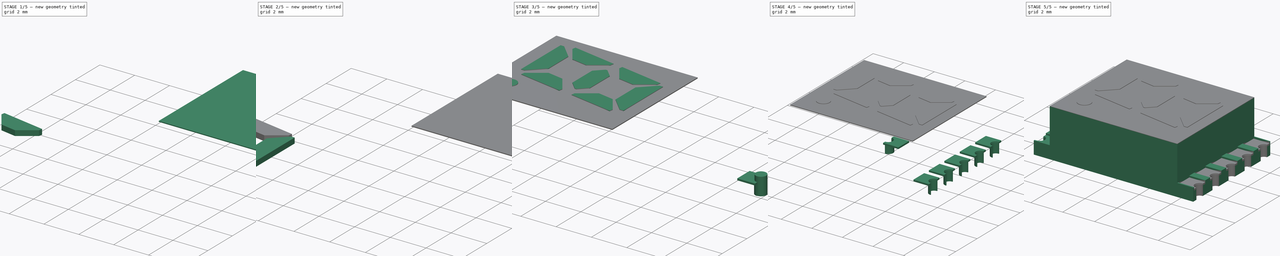
[diagram: build sequence overview — one tinted view per stage of 5, left to right]
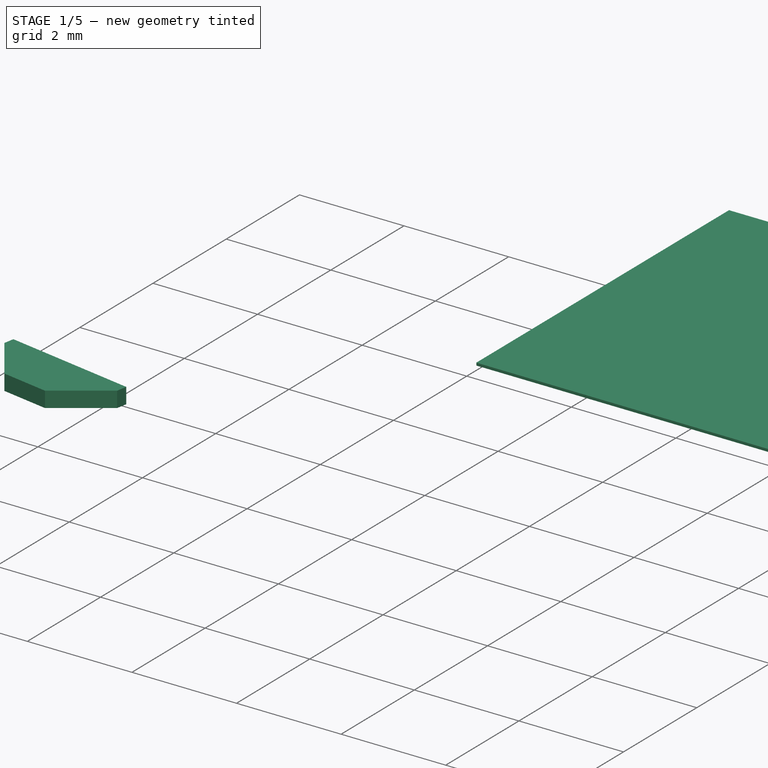
[diagram: stage 1 of 5 — iso view after this stage's code; geometry added in this stage tinted green]
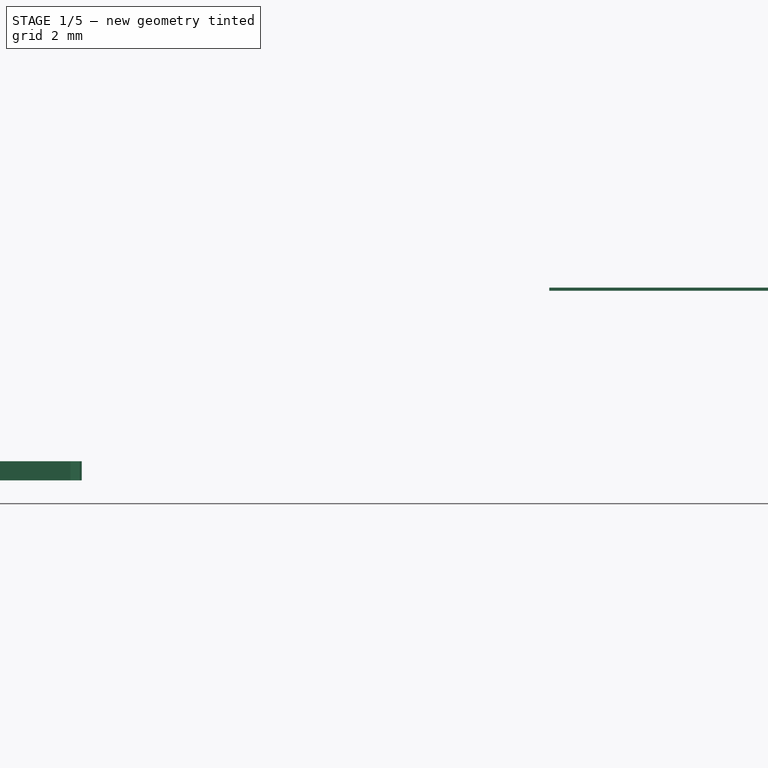
[diagram: stage 1 of 5 — front view after this stage's code; geometry added in this stage tinted green]
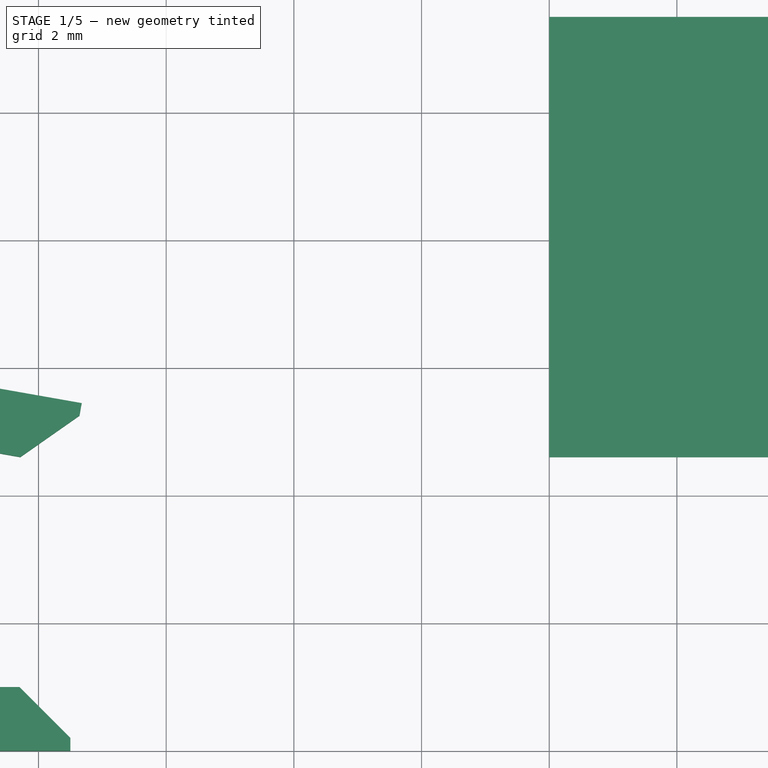
[diagram: stage 1 of 5 — top view after this stage's code; geometry added in this stage tinted green]
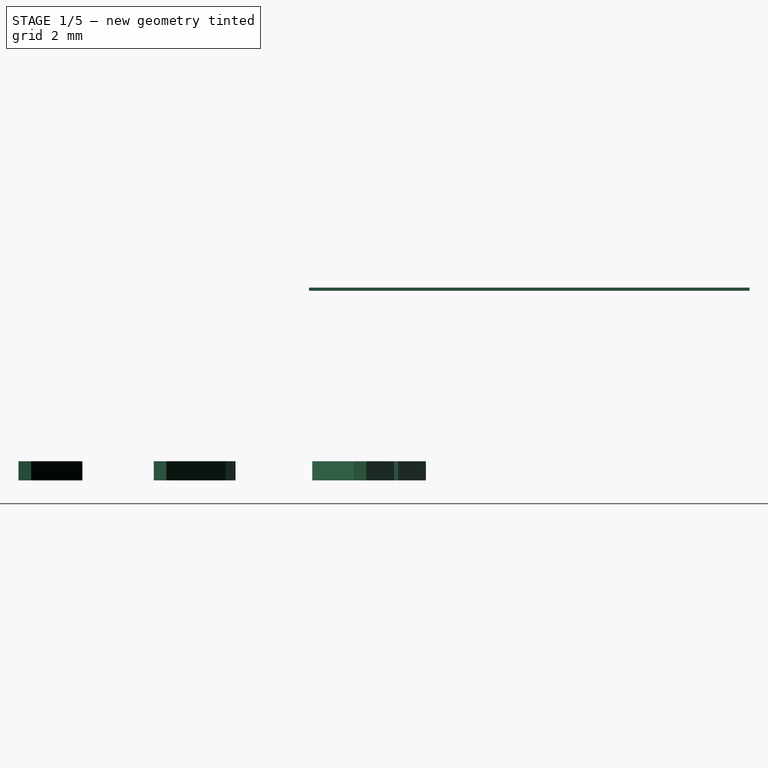
[diagram: stage 1 of 5 — right view after this stage's code; geometry added in this stage tinted green]
FCSTD DOCUMENT  (FreeCAD 0.17R11223 (Git))
Label: KCSAX02-XXX_4
License: All rights reserved
LicenseURL: http://en.wikipedia.org/wiki/All_rights_reserved
objects: Part::Box×19, Part::Cut×14, Part::Chamfer×12, Part::Cylinder×8, Part::FeaturePython×4, Part::MultiFuse×3, Sketcher::SketchObject×1, PartDesign::Pad×1, PartDesign::Body×1
note: 64 computed .brp shape members not serialized (recipe doc carries the construction recipe); baked Part::Feature solids carry a one-line shape summary decoded from their .brp

FEATURE [Part::Box] Box023  label="Kub023"
  AttacherType = Attacher::AttachEngine3D
  Height = 0.3
  Length = 2.5
  Placement = pos=(-14,-8,0) rot=(0,0,1;0rad)
  Width = 1
FEATURE [Part::Chamfer] Chamfer004
  Base = -> Box023
  Edges = 1 edges r=0.8: [Edge7]
FEATURE [Part::Box] Box024  label="Kub024"
  AttacherType = Attacher::AttachEngine3D
  Height = 0.3
  Length = 2.5
  Placement = pos=(-14,-8,0) rot=(0,0,1;0rad)
  Width = 1
FEATURE [Part::Chamfer] Chamfer006
  Base = -> Box024
  Edges = 1 edges r=0.8: [Edge7]
FEATURE [Part::Chamfer] Chamfer007
  Base = -> Chamfer006
  Edges = 1 edges r=0.8: [Edge15]
  Placement = pos=(-29.5,-7.5,0) rot=(0,0,1;2.96706rad)
FEATURE [Part::Box] Box025  label="Kub025"
  AttacherType = Attacher::AttachEngine3D
  Height = 0.3
  Length = 2.5
  Placement = pos=(-14,-8,0) rot=(0,0,1;0rad)
  Width = 1
FEATURE [Part::Chamfer] Chamfer008
  Base = -> Box025
  Edges = 1 edges r=0.8: [Edge7]
FEATURE [Part::Chamfer] Chamfer009
  Base = -> Chamfer008
  Edges = 1 edges r=0.8: [Edge15]
  Placement = pos=(-2,0,0) rot=(0,0,-1;0.174533rad)
FEATURE [Part::Box] Box026  label="Kub026"
  AttacherType = Attacher::AttachEngine3D
  Height = 0.3
  Length = 2.5
  Placement = pos=(-14,-8,0) rot=(0,0,1;0rad)
  Width = 1
FEATURE [Part::Chamfer] Chamfer010
  Base = -> Box026
  Edges = 1 edges r=0.8: [Edge7]
FEATURE [Part::Chamfer] Chamfer011
  Base = -> Chamfer010
  Edges = 1 edges r=0.8: [Edge15]
  Placement = pos=(-26.5,-8,0) rot=(0,0,1;2.96706rad)
FEATURE [Part::Box] Box027  label="Topside"
  AttacherType = Attacher::AttachEngine3D
  Height = 0.05
  Length = 8
  Placement = pos=(-4,-3.45,2.97) rot=(0,0,1;0rad)
  Width = 6.9
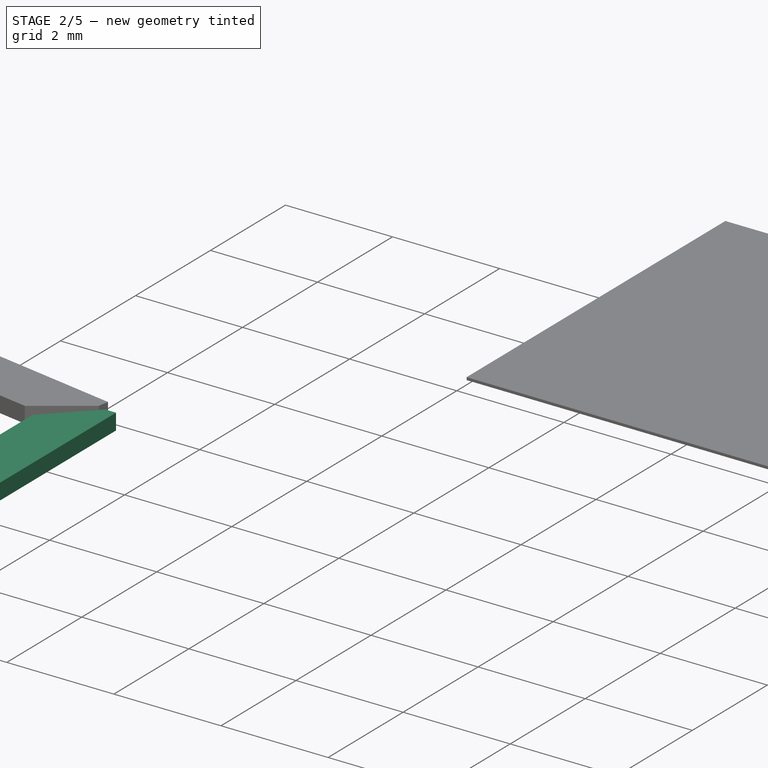
[diagram: stage 2 of 5 — iso view after this stage's code; geometry added in this stage tinted green]
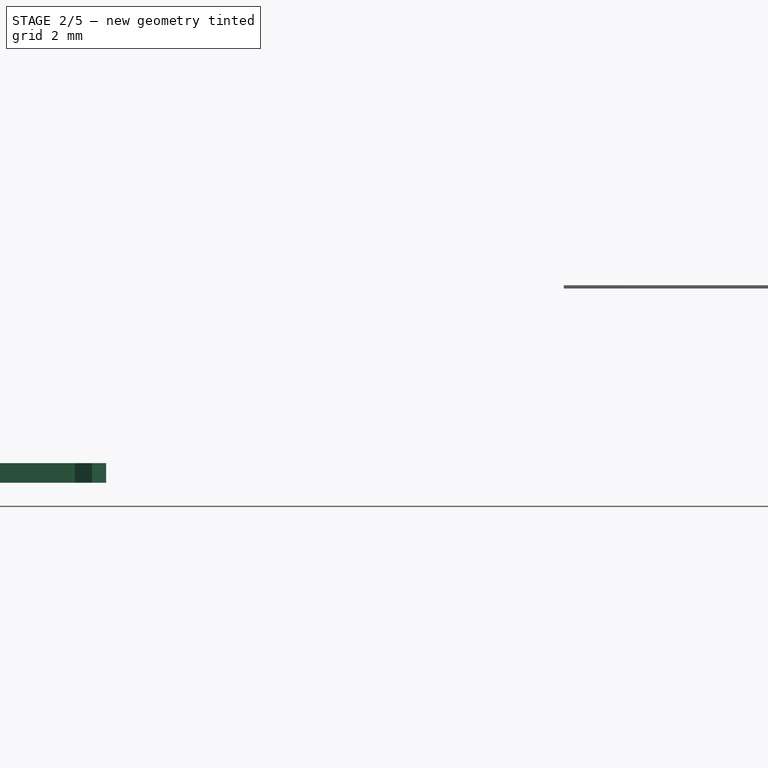
[diagram: stage 2 of 5 — front view after this stage's code; geometry added in this stage tinted green]
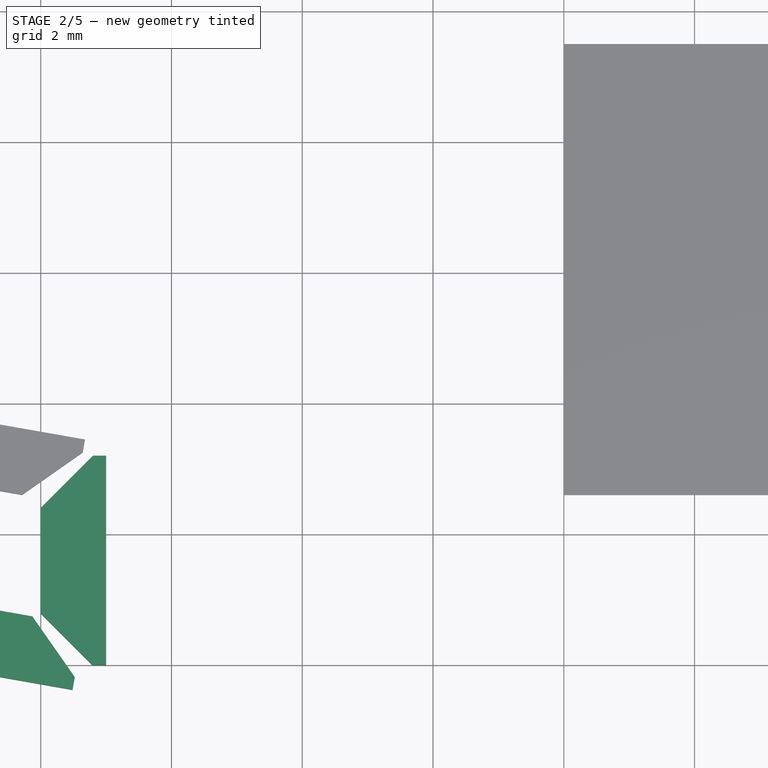
[diagram: stage 2 of 5 — top view after this stage's code; geometry added in this stage tinted green]
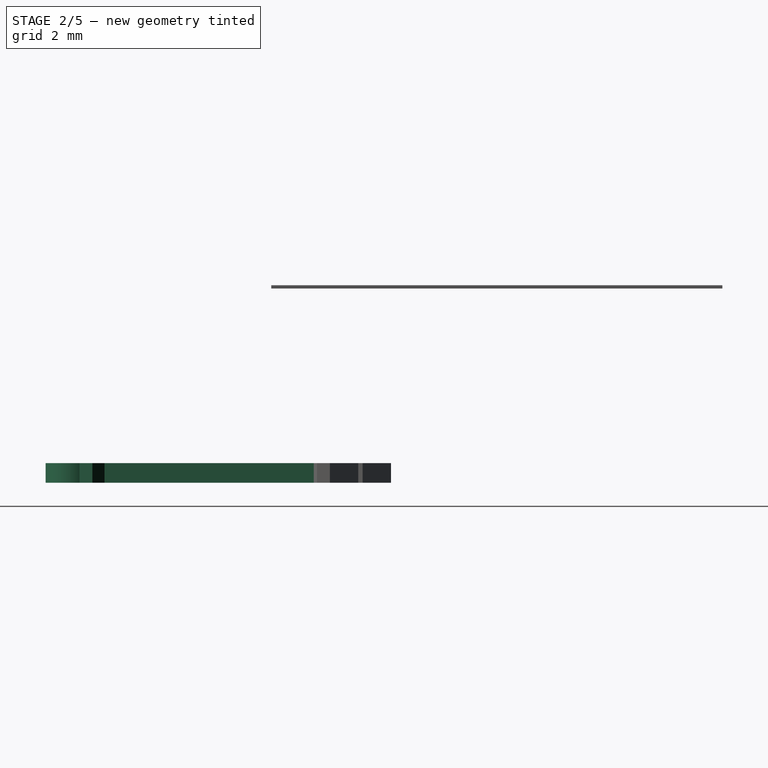
[diagram: stage 2 of 5 — right view after this stage's code; geometry added in this stage tinted green]
FEATURE [Part::Box] Box007  label="Kub007"
  AttacherType = Attacher::AttachEngine3D
  Height = 0.3
  Length = 1
  Placement = pos=(-11,-5,0) rot=(0,0,1;0rad)
  Width = 3.2
FEATURE [Part::Box] Box009  label="Kub009"
  AttacherType = Attacher::AttachEngine3D
  Height = 0.3
  Length = 3
  Placement = pos=(-10.8,-6.415,0) rot=(0,0,1;0.785398rad)
  Width = 1
FEATURE [Part::Box] Box010  label="Kub010"
  AttacherType = Attacher::AttachEngine3D
  Height = 0.3
  Length = 4
  Placement = pos=(-11.8,-0.8,0) rot=(0,0,-1;0.785398rad)
  Width = 1
FEATURE [Part::Box] Box011  label="Kub011"
  AttacherType = Attacher::AttachEngine3D
  Height = 0.3
  Length = 1
  Placement = pos=(-20,-5,0) rot=(0,0,1;0rad)
  Width = 3.2
FEATURE [Part::Box] Box012  label="Kub012"
  AttacherType = Attacher::AttachEngine3D
  Height = 0.3
  Length = 3
  Placement = pos=(-20.2,-2.8,0) rot=(0,0,1;0.785398rad)
  Width = 1
FEATURE [Part::Box] Box013  label="Kub013"
  AttacherType = Attacher::AttachEngine3D
  Height = 0.3
  Length = 4
  Placement = pos=(-22.2,-3.43,0) rot=(0,0,-1;0.785398rad)
  Width = 1
FEATURE [Part::Cut] Cut011
  Base = -> Box007
  Tool = -> Box010
FEATURE [Part::Cut] Cut012
  Base = -> Cut011
  Placement = pos=(-6.5,0,0) rot=(0,0,1;0rad)
  Tool = -> Box009
FEATURE [Part::Cut] Cut013
  Base = -> Box011
  Tool = -> Box013
FEATURE [Part::Cut] Cut014
  Base = -> Cut013
  Placement = pos=(8,-1,0) rot=(0,0,1;0rad)
  Tool = -> Box012
FEATURE [Part::Cylinder] Cylinder007
  Angle = 360
  AttacherType = Attacher::AttachEngine3D
  Height = 0.3
  Placement = pos=(-17.1,-6.5,0) rot=(0,0,1;0rad)
  Radius = 0.4
FEATURE [Part::Chamfer] Chamfer005
  Base = -> Chamfer004
  Edges = 1 edges r=0.8: [Edge15]
  Placement = pos=(1.2,-0.5,0) rot=(0,0,-1;0.174533rad)
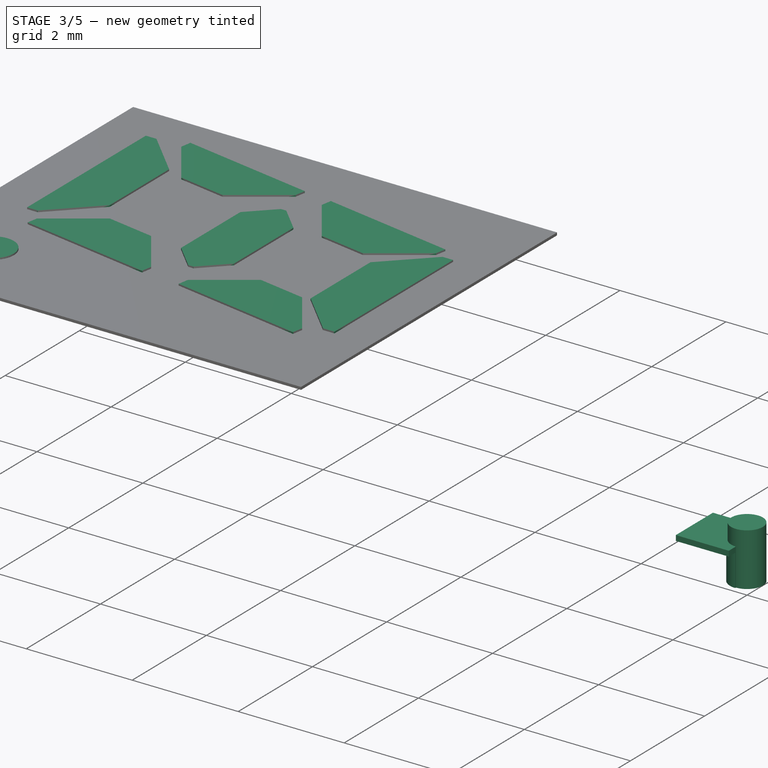
[diagram: stage 3 of 5 — iso view after this stage's code; geometry added in this stage tinted green]
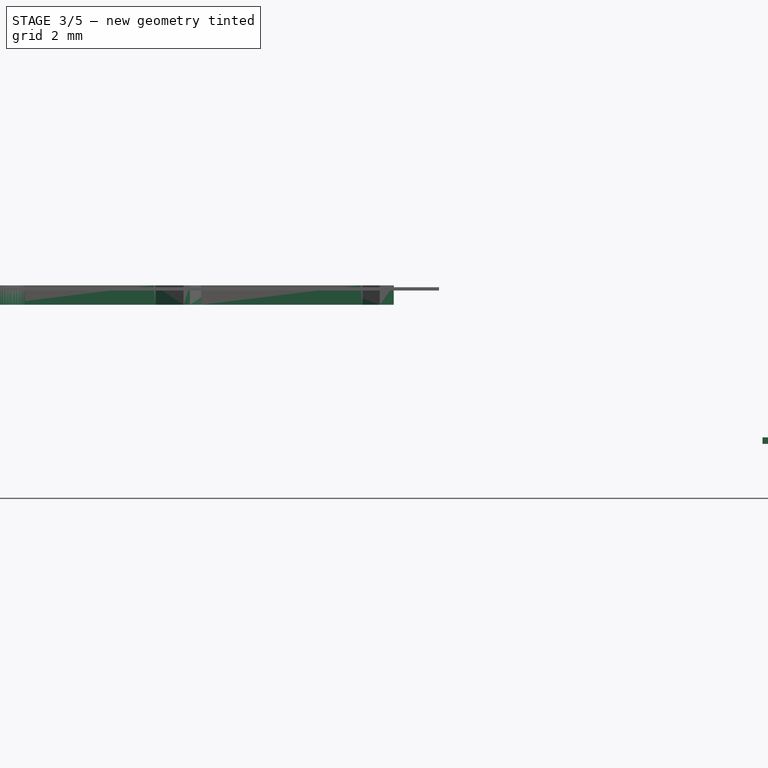
[diagram: stage 3 of 5 — front view after this stage's code; geometry added in this stage tinted green]
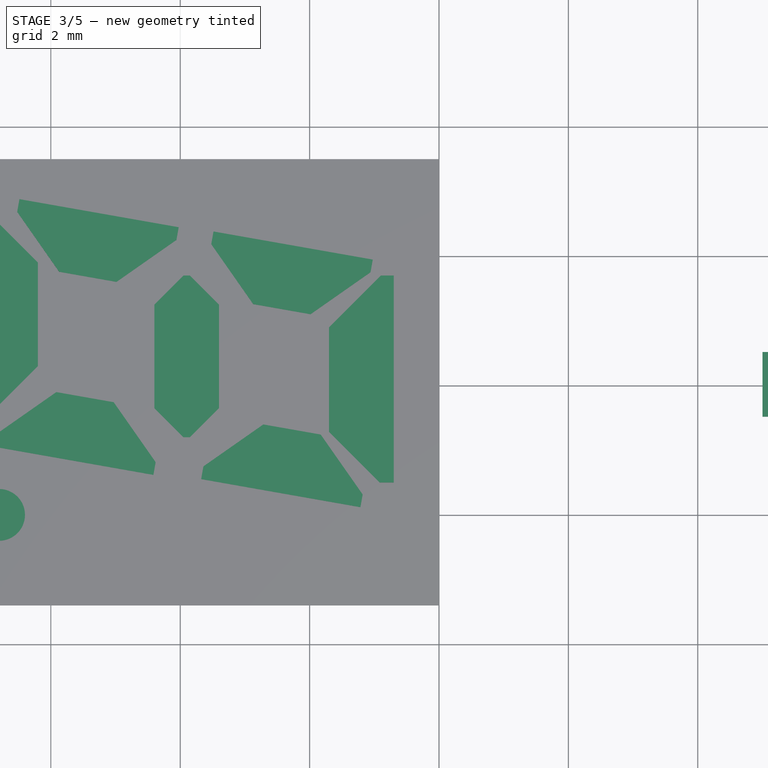
[diagram: stage 3 of 5 — top view after this stage's code; geometry added in this stage tinted green]
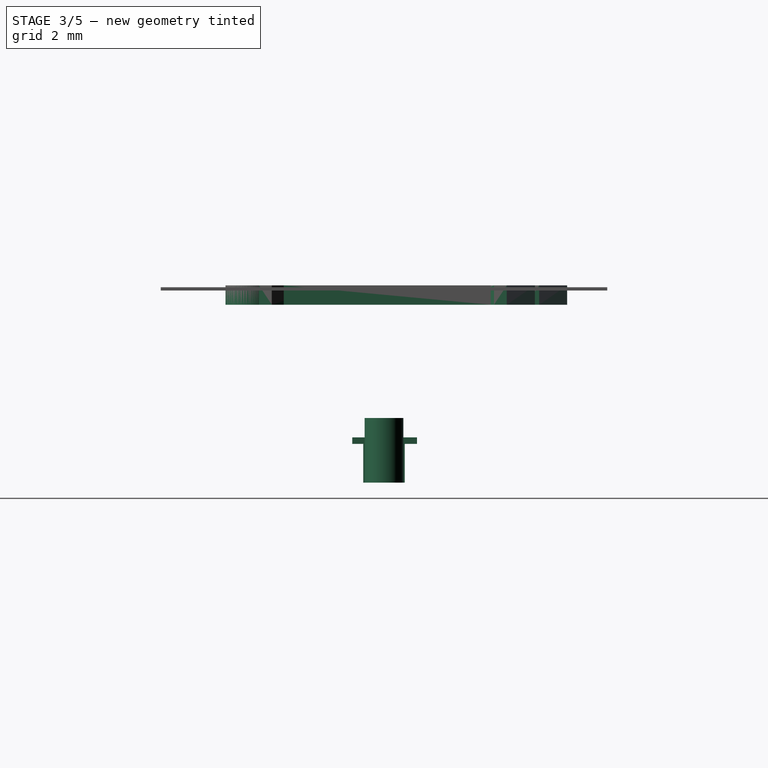
[diagram: stage 3 of 5 — right view after this stage's code; geometry added in this stage tinted green]
FEATURE [Part::Box] Box004  label="Kub004"
  AttacherType = Attacher::AttachEngine3D
  Height = 0.1
  Length = 1
  Placement = pos=(9,-0.49,0.6) rot=(0,0,1;0rad)
  Width = 1
FEATURE [Part::Cylinder] Cylinder002
  Angle = 360
  AttacherType = Attacher::AttachEngine3D
  Height = 1
  Placement = pos=(10,0,0) rot=(0,0,1;3.14159rad)
  Radius = 0.3
FEATURE [Part::Cylinder] Cylinder005
  Angle = 360
  AttacherType = Attacher::AttachEngine3D
  Height = 3
  Placement = pos=(0,0,-1) rot=(0,0,1;0rad)
  Radius = 0.28
FEATURE [Part::Cylinder] Cylinder006
  Angle = 360
  AttacherType = Attacher::AttachEngine3D
  Height = 0.65
  Radius = 0.32
FEATURE [Part::Cut] Cut008
  Base = -> Cylinder006
  Tool = -> Cylinder005
FEATURE [Part::Box] Box006  label="Kub006"
  AttacherType = Attacher::AttachEngine3D
  Height = 1
  Length = 1
  Placement = pos=(-1,-0.5,0) rot=(0,0,1;0rad)
  Width = 1
FEATURE [Part::Cut] Cut009
  Base = -> Cut008
  Placement = pos=(10,0,0) rot=(0,0,1;3.14159rad)
  Tool = -> Box006
FEATURE [Part::Box] Box008  label="Kub008"
  AttacherType = Attacher::AttachEngine3D
  Height = 0.3
  Length = 1
  Placement = pos=(-15,-5,0) rot=(0,0,1;0rad)
  Width = 2.5
FEATURE [Part::Chamfer] Chamfer
  Base = -> Box008
  Edges = 1 edges r=0.45: [Edge1]
FEATURE [Part::Chamfer] Chamfer001
  Base = -> Chamfer
  Edges = 1 edges r=0.45: [Edge15]
FEATURE [Part::Chamfer] Chamfer002
  Base = -> Chamfer001
  Edges = 1 edges r=0.45: [Edge14]
FEATURE [Part::Chamfer] Chamfer003
  Base = -> Chamfer002
  Edges = 1 edges r=0.45: [Edge16]
  Placement = pos=(0.3,-0.3,0) rot=(0,0,1;0rad)
FEATURE [Part::MultiFuse] Fusion002  label="Digit"
  Placement = pos=(14.3,4.45,2.75) rot=(0,0,1;0rad)
  Shapes = -> [Chamfer003,Chamfer011,Cut014,Chamfer009,Cut012,Cylinder007,Chamfer007,Chamfer005]
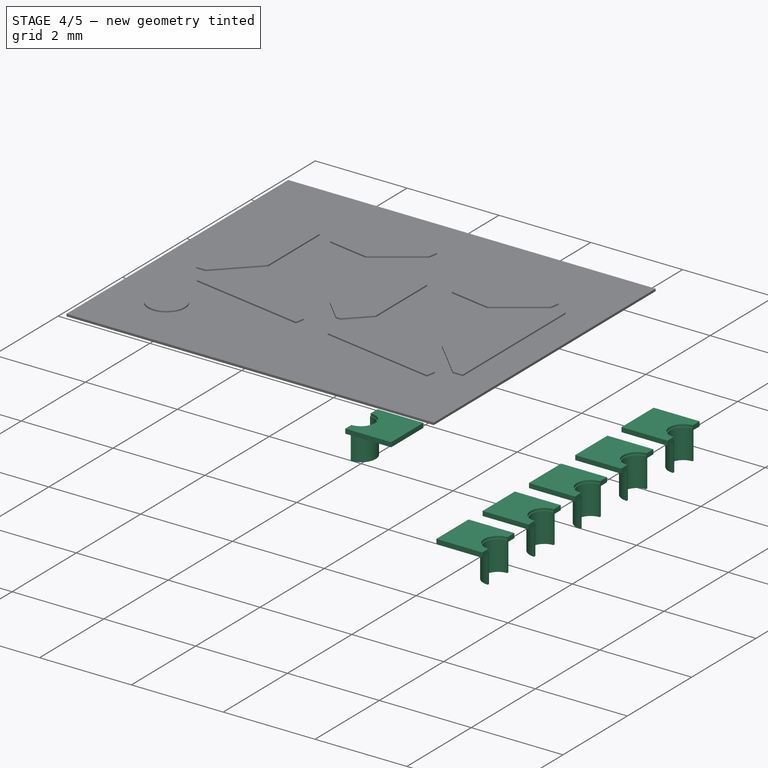
[diagram: stage 4 of 5 — iso view after this stage's code; geometry added in this stage tinted green]
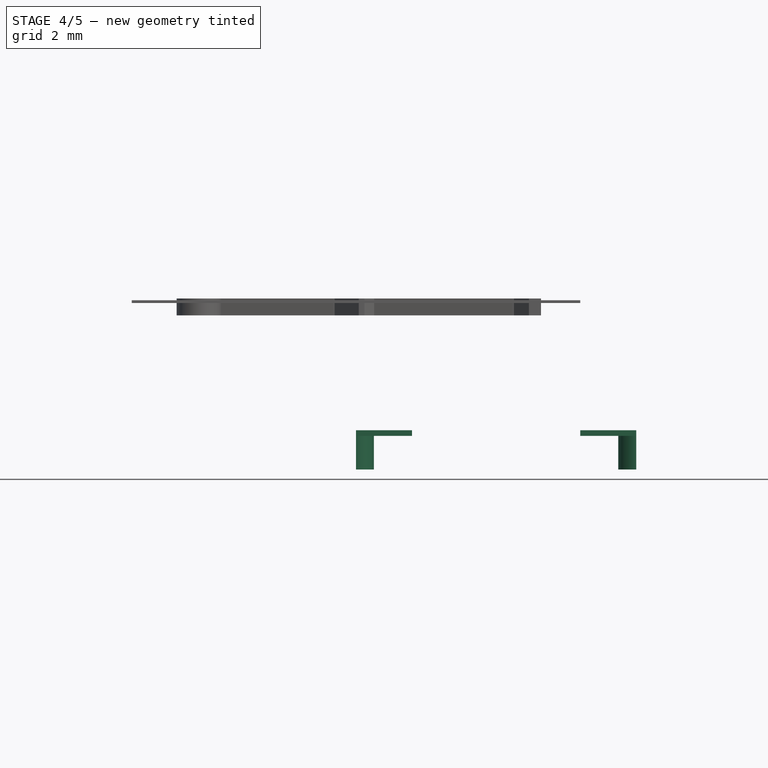
[diagram: stage 4 of 5 — front view after this stage's code; geometry added in this stage tinted green]
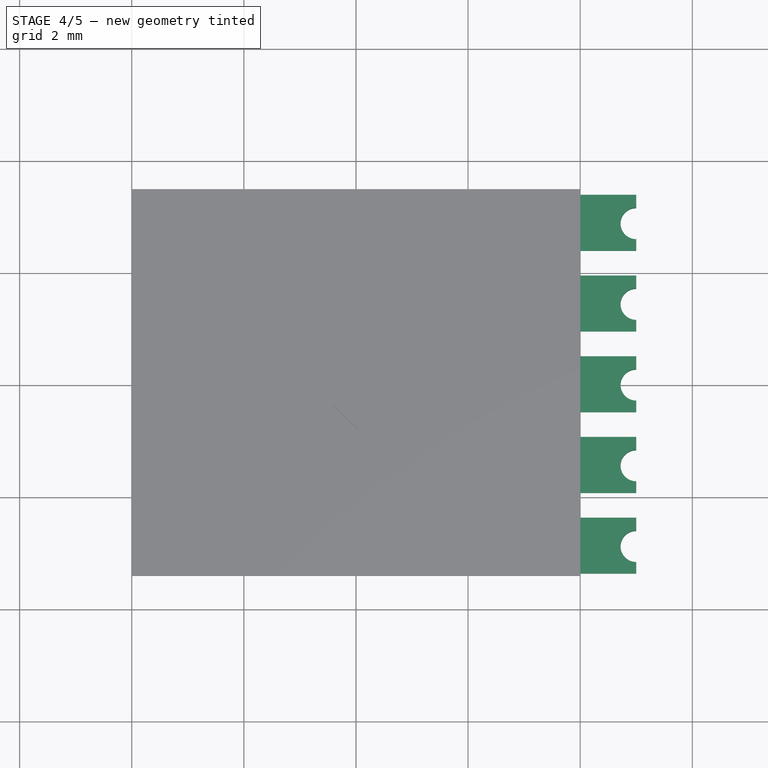
[diagram: stage 4 of 5 — top view after this stage's code; geometry added in this stage tinted green]
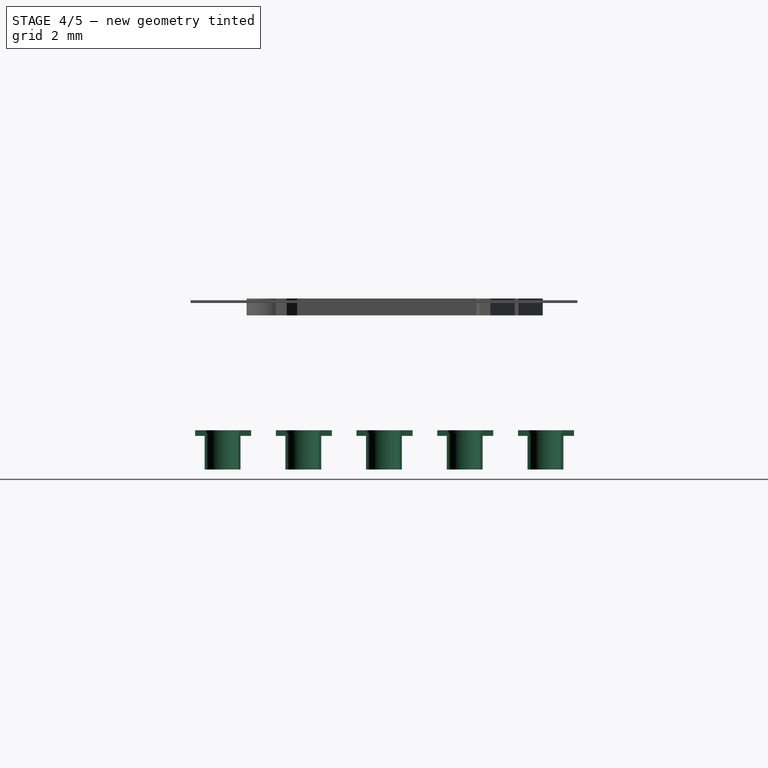
[diagram: stage 4 of 5 — right view after this stage's code; geometry added in this stage tinted green]
FEATURE [Part::Box] Box003  label="Kub003"
  AttacherType = Attacher::AttachEngine3D
  Height = 0.1
  Length = 1
  Placement = pos=(0,-0.49,0.6) rot=(0,0,1;0rad)
  Width = 1
FEATURE [Part::Cylinder] Cylinder001
  Angle = 360
  AttacherType = Attacher::AttachEngine3D
  Height = 1
  Radius = 0.3
FEATURE [Part::Cut] Cut005
  Base = -> Box004
  Tool = -> Cylinder002
FEATURE [Part::Cylinder] Cylinder003
  Angle = 360
  AttacherType = Attacher::AttachEngine3D
  Height = 3
  Placement = pos=(0,0,-1) rot=(0,0,1;0rad)
  Radius = 0.28
FEATURE [Part::Cylinder] Cylinder004
  Angle = 360
  AttacherType = Attacher::AttachEngine3D
  Height = 0.65
  Radius = 0.32
FEATURE [Part::Cut] Cut006
  Base = -> Cylinder004
  Tool = -> Cylinder003
FEATURE [Part::Box] Box005  label="Kub005"
  AttacherType = Attacher::AttachEngine3D
  Height = 1
  Length = 1
  Placement = pos=(-1,-0.5,0) rot=(0,0,1;0rad)
  Width = 1
FEATURE [Part::Cut] Cut007
  Base = -> Cut006
  Tool = -> Box005
FEATURE [Part::Cut] Cut010
  Base = -> Box003
  Tool = -> Cylinder001
FEATURE [Part::MultiFuse] Fusion
  Shapes = -> [Cut010,Cut007]
FEATURE [Part::MultiFuse] Fusion001
  Shapes = -> [Cut009,Cut005]
FEATURE [Part::FeaturePython] Array005  label="Pin006-010"  # Draft array (typed FeaturePython)
  Angle = 360
  ArrayType = 0
  Axis = (0,0,1)
  Base = -> Fusion001
  Center = (0,0,0)
  Fuse = false
  IntervalAxis = (0,0,0)
  IntervalX = (1,0,0)
  IntervalY = (0,-1.44,0)
  IntervalZ = (0,0,0)
  NumberPolar = 1
  NumberX = 1
  NumberY = 5
  NumberZ = 1
  Placement = pos=(-5,2.88,0) rot=(0,0,1;0rad)
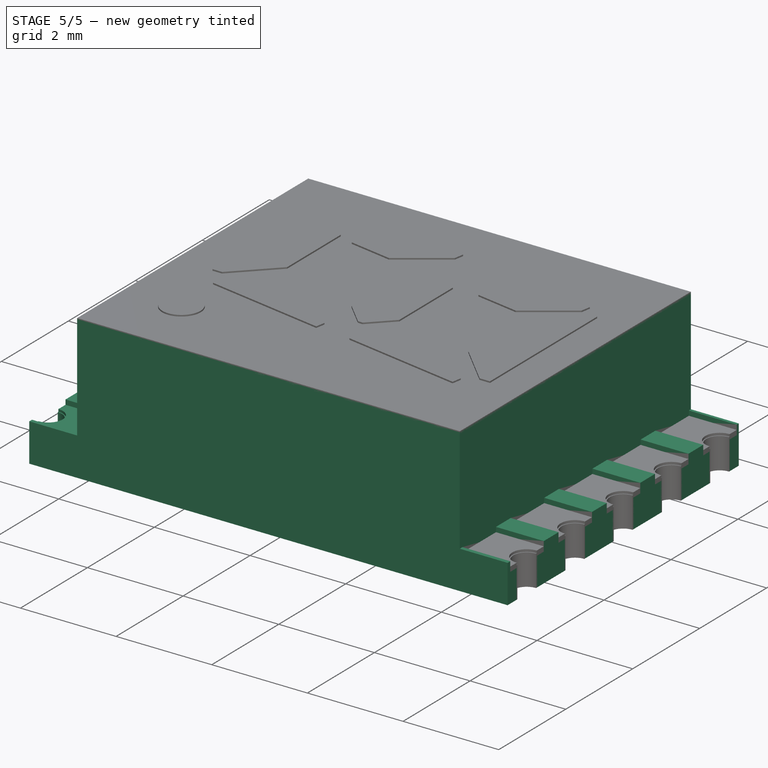
[diagram: stage 5 of 5 — iso view after this stage's code; geometry added in this stage tinted green]
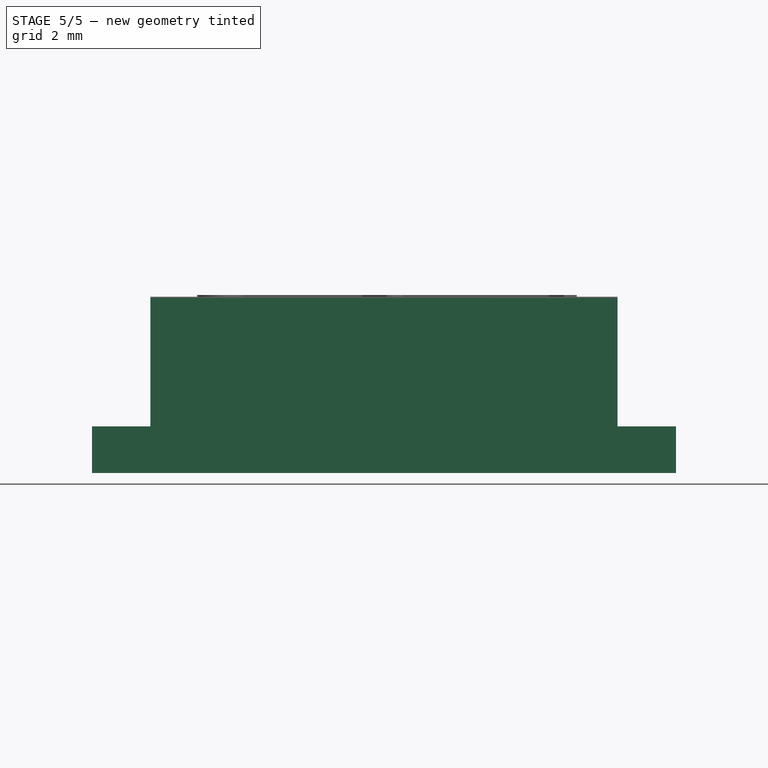
[diagram: stage 5 of 5 — front view after this stage's code; geometry added in this stage tinted green]
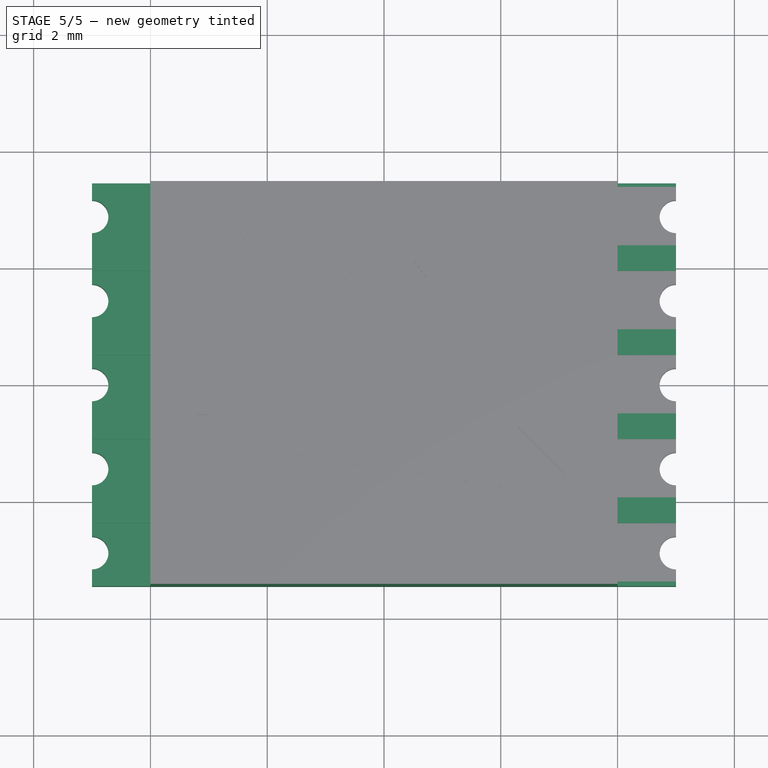
[diagram: stage 5 of 5 — top view after this stage's code; geometry added in this stage tinted green]
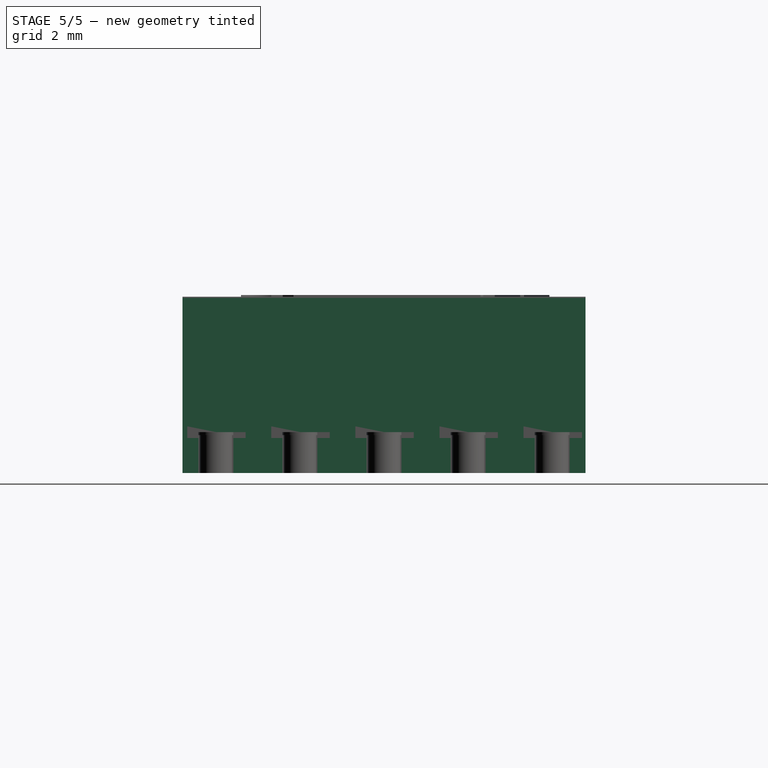
[diagram: stage 5 of 5 — right view after this stage's code; geometry added in this stage tinted green]
FEATURE [Sketcher::SketchObject] Sketch
  MapMode = 5
  Support = -> [XY_Plane]
  sketch-geometry (4):
    g0: LineSegment StartX=0 StartY=0.57 StartZ=0 EndX=10 EndY=0.57 EndZ=0
    g1: LineSegment StartX=10 StartY=0.57 StartZ=0 EndX=10 EndY=-6.33 EndZ=0
    g2: LineSegment StartX=10 StartY=-6.33 StartZ=0 EndX=0 EndY=-6.33 EndZ=0
    g3: LineSegment StartX=0 StartY=-6.33 StartZ=0 EndX=0 EndY=0.57 EndZ=0
  constraints (12):
    c: Coincident(g0,g1)
    c: Coincident(g1,g2)
    c: Coincident(g2,g3)
    c: Coincident(g3,g0)
    c: Horizontal(g0)
    c: Horizontal(g2)
    c: Vertical(g1)
    c: Vertical(g3)
    c: DistanceX(g0,g0) = 10
    c: DistanceY(g1,g0) = 6.9
    c: DistanceY(g-1,g0) = 0.57
    c: DistanceX(g0,g-1) = 0
FEATURE [PartDesign::Pad] Pad
  Length = 3
  Length2 = 100
  Profile = -> Sketch
  Type = 0
FEATURE [PartDesign::Body] Body
  Group = -> [Sketch,Pad]
  Origin = -> BodyOrigin
  Placement = pos=(-5,2.88,0) rot=(0,0,1;0rad)
  Tip = -> Pad
FEATURE [Part::Box] Box  label="Kub"
  AttacherType = Attacher::AttachEngine3D
  Height = 4
  Length = 1
  Placement = pos=(0,-7,0.8) rot=(0,0,1;0rad)
  Width = 8
FEATURE [Part::Box] Box001  label="Kub001"
  AttacherType = Attacher::AttachEngine3D
  Height = 4
  Length = 1
  Placement = pos=(9,-7,0.8) rot=(0,0,1;0rad)
  Width = 8
FEATURE [Part::Cut] Cut
  Base = -> Pad
  Tool = -> Box
FEATURE [Part::Cut] Cut001
  Base = -> Cut
  Tool = -> Box001
FEATURE [Part::Cylinder] Cylinder
  Angle = 360
  AttacherType = Attacher::AttachEngine3D
  Height = 3
  Radius = 0.3
FEATURE [Part::FeaturePython] Array  # Draft array (typed FeaturePython)
  Angle = 360
  ArrayType = 0
  Axis = (0,0,1)
  Base = -> Cylinder
  Center = (0,0,0)
  Fuse = false
  IntervalAxis = (0,0,0)
  IntervalX = (10,0,0)
  IntervalY = (0,-1.44,0)
  IntervalZ = (0,0,0)
  NumberPolar = 1
  NumberX = 2
  NumberY = 5
  NumberZ = 1
FEATURE [Part::Cut] Cut002
  Base = -> Cut001
  Tool = -> Array
FEATURE [Part::Box] Box002  label="Kub002"
  AttacherType = Attacher::AttachEngine3D
  Height = 1
  Length = 1
  Placement = pos=(0,-0.49,0.6) rot=(0,0,1;0rad)
  Width = 1
FEATURE [Part::FeaturePython] Array001  # Draft array (typed FeaturePython)
  Angle = 360
  ArrayType = 0
  Axis = (0,0,1)
  Base = -> Box002
  Center = (0,0,0)
  Fuse = false
  IntervalAxis = (0,0,0)
  IntervalX = (9,0,0)
  IntervalY = (0,-1.44,0)
  IntervalZ = (0,0,0)
  NumberPolar = 1
  NumberX = 2
  NumberY = 5
  NumberZ = 1
FEATURE [Part::Cut] Cut003
  Base = -> Cut002
  Placement = pos=(-5,2.88,0) rot=(0,0,1;0rad)
  Tool = -> Array001
FEATURE [Part::FeaturePython] Array004  label="Pin001-005"  # Draft array (typed FeaturePython)
  Angle = 360
  ArrayType = 0
  Axis = (0,0,1)
  Base = -> Fusion
  Center = (0,0,0)
  Fuse = false
  IntervalAxis = (0,0,0)
  IntervalX = (1,0,0)
  IntervalY = (0,-1.44,0)
  IntervalZ = (0,0,0)
  NumberPolar = 1
  NumberX = 1
  NumberY = 5
  NumberZ = 1
  Placement = pos=(-5,2.88,0) rot=(0,0,1;0rad)
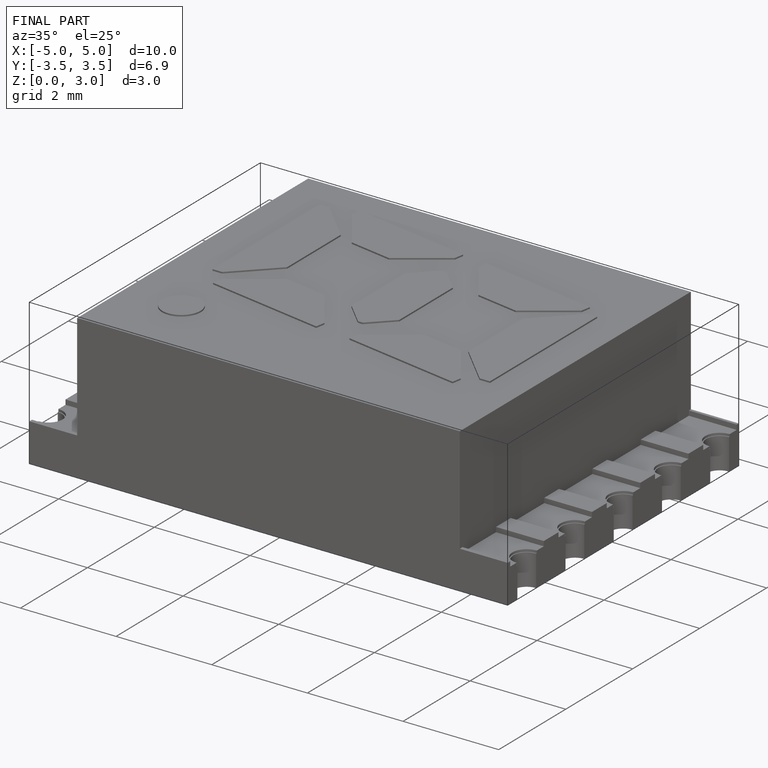
[diagram: finished part — iso view with bounding-box wireframe]
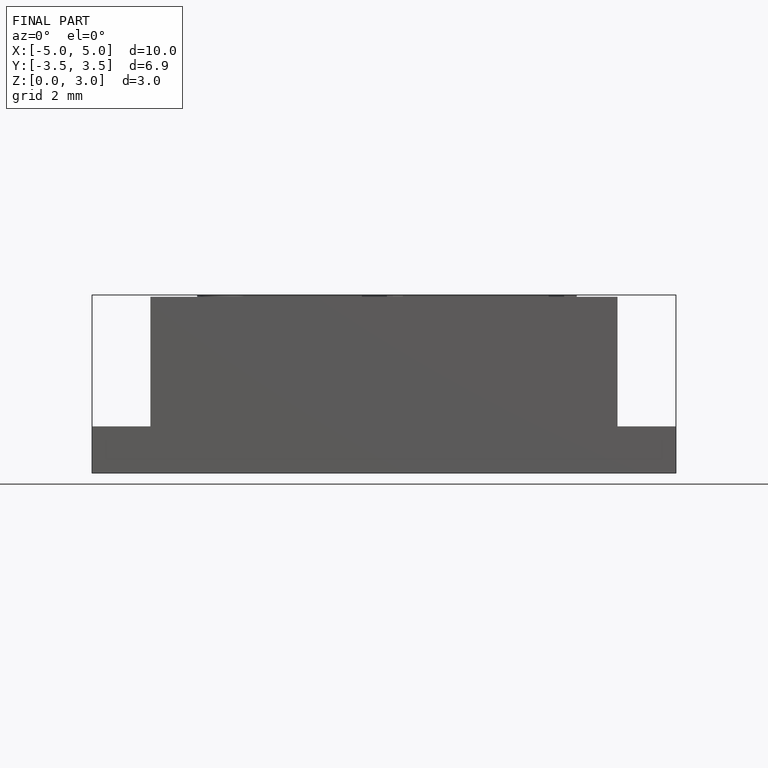
[diagram: finished part — front view with bounding-box wireframe]
